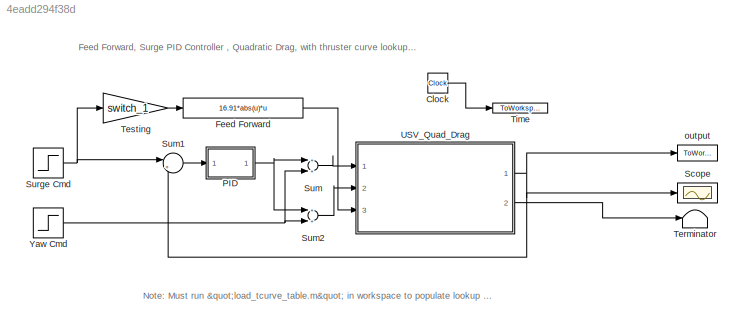
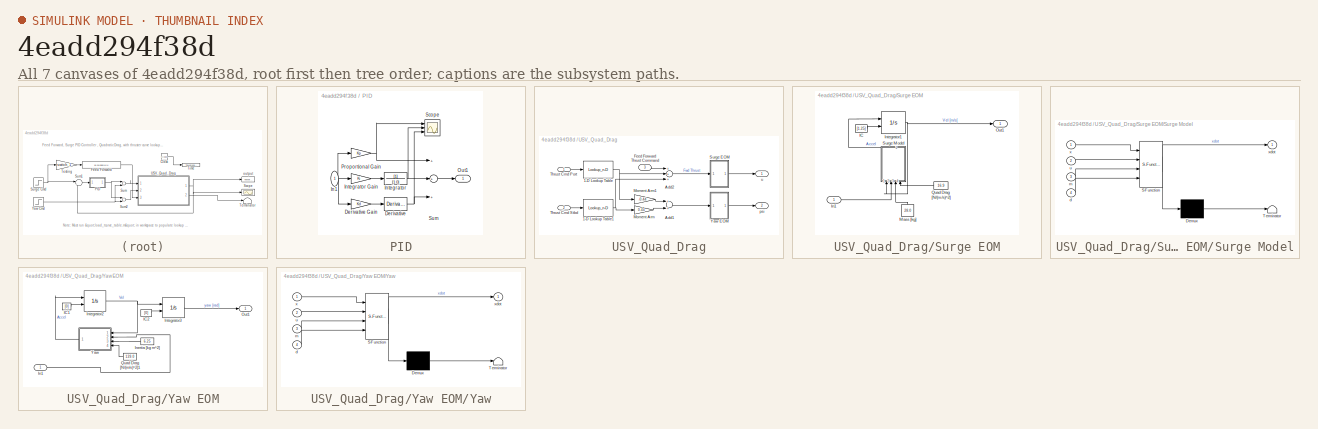
[diagram: thumbnail index - all 7 canvases of the model, root first then tree order]
MODEL slx_4eadd294f38d
KIND model
CONFIG AbsTol = auto
CONFIG FixedStep = auto
CONFIG MaxStep = auto
CONFIG MinStep = auto
CONFIG RelTol = 1e-3
CONFIG SampleTimeConstraint = Unconstrained
CONFIG Solver = VariableStepAuto
CONFIG SolverMode = Auto
CONFIG SolverName = VariableStepAuto
CONFIG StartTime = 0.0
CONFIG StopTime = 45
BLOCK [Clock] Clock
BLOCK [Fcn] Feed Forward
  Expr = 16.91*abs(u)*u
BLOCK [SubSystem] PID
  Ports = [1, 1]
  RequestExecContextInheritance = off
  Variant = off
BLOCK [Derivative] PID/Derivative
  CoefficientInTFapproximation = 0
BLOCK [Gain] PID/Derivative Gain
  Gain = Kd
  OutDataTypeStr = Inherit: Inherit via internal rule
  ParamDataTypeStr = Inherit: Inherit via internal rule
  SaturateOnIntegerOverflow = off
BLOCK [Inport] PID/In1
  IconDisplay = Port number
BLOCK [TransferFcn] PID/Integrator
  Denominator = [1 0]
BLOCK [Gain] PID/Integrator Gain
  Gain = Ki
  OutDataTypeStr = Inherit: Inherit via internal rule
  ParamDataTypeStr = Inherit: Inherit via internal rule
  SaturateOnIntegerOverflow = off
BLOCK [Outport] PID/Out1
  IconDisplay = Port number
BLOCK [Gain] PID/Proportional Gain
  Gain = Kp
  OutDataTypeStr = Inherit: Inherit via internal rule
  ParamDataTypeStr = Inherit: Inherit via internal rule
  SaturateOnIntegerOverflow = off
BLOCK [Scope] PID/Scope
  NumInputPorts = 3
  Ports = [3]
  ScopeSpecificationString = Simulink.scopes.TimeScopeBlockCfg('CurrentConfiguration', extmgr.ConfigurationSet(extmgr.Configuration('Core','General UI',true),extmgr.Configuration('Core','Source UI',true),extmgr.Configuration('Sources','WiredSimulink',true,'DataLoggingVariableName','ScopeData1'),extmgr.Configuration('Visuals','Time Domain',true,'SerializedDisplays',{struct('MinYLimReal','-0.28975','MaxYLimReal','2.25442','YLab...<+1431ch>
BLOCK [Sum] PID/Sum
  InputSameDT = off
  Inputs = +++
  OutDataTypeStr = Inherit: Inherit via internal rule
  Ports = [3, 1]
  SaturateOnIntegerOverflow = off
BLOCK [Scope] Scope
  Ports = [1]
  ScopeSpecificationString = Simulink.scopes.TimeScopeBlockCfg('CurrentConfiguration', extmgr.ConfigurationSet(extmgr.Configuration('Core','General UI',true),extmgr.Configuration('Core','Source UI',true),extmgr.Configuration('Sources','WiredSimulink',true),extmgr.Configuration('Visuals','Time Domain',true,'SerializedDisplays',{struct('MinYLimReal','1.21856','MaxYLimReal','1.53293','YLabelReal','','MinYLimMag','1.21856','MaxYL...<+1371ch>
BLOCK [Sum] Sum
  InputSameDT = off
  OutDataTypeStr = Inherit: Inherit via internal rule
  Ports = [2, 1]
  SaturateOnIntegerOverflow = off
BLOCK [Sum] Sum1
  IconShape = round
  InputSameDT = off
  Inputs = |+-
  OutDataTypeStr = Inherit: Inherit via internal rule
  Ports = [2, 1]
  SaturateOnIntegerOverflow = off
BLOCK [Sum] Sum2
  InputSameDT = off
  OutDataTypeStr = Inherit: Inherit via internal rule
  Ports = [2, 1]
  SaturateOnIntegerOverflow = off
BLOCK [Step] Surge Cmd
  After = 1.5
  Before = 1.25
  SampleTime = 0
  Time = 10
BLOCK [Terminator] Terminator
BLOCK [Gain] Testing
  Gain = switch_1
  OutDataTypeStr = Inherit: Inherit via internal rule
  ParamDataTypeStr = Inherit: Inherit via internal rule
  SaturateOnIntegerOverflow = off
BLOCK [ToWorkspace] Time
  FixptAsFi = on
  MaxDataPoints = inf
  Ports = [1]
  SampleTime = -1
  Save2DSignal = 3-D array (concatenate along third dimension)
  VariableName = time
BLOCK [SubSystem] USV_Quad_Drag
  Ports = [3, 2]
  RequestExecContextInheritance = off
  Variant = off
BLOCK [Lookup_n-D] USV_Quad_Drag/1-D Lookup Table
  BreakpointsForDimension1 = breakpoints1
  ExtrapMethod = Clip
  InternalRulePriority = Speed
  NumberOfTableDimensions = 1
  Ports = [1, 1]
  RndMeth = Simplest
  Table = table_data
  UseLastTableValue = on
BLOCK [Lookup_n-D] USV_Quad_Drag/1-D Lookup Table1
  BreakpointsForDimension1 = breakpoints1
  ExtrapMethod = Clip
  InternalRulePriority = Speed
  NumberOfTableDimensions = 1
  Ports = [1, 1]
  RndMeth = Simplest
  Table = table_data
  UseLastTableValue = on
BLOCK [Sum] USV_Quad_Drag/Add1
  InputSameDT = off
  OutDataTypeStr = Inherit: Inherit via internal rule
  Ports = [2, 1]
  SaturateOnIntegerOverflow = off
BLOCK [Sum] USV_Quad_Drag/Add2
  InputSameDT = off
  Inputs = +++
  OutDataTypeStr = Inherit: Inherit via internal rule
  Ports = [3, 1]
  SaturateOnIntegerOverflow = off
BLOCK [Inport] USV_Quad_Drag/Feed Forward Thrust Command 
  IconDisplay = Port number
  Port = 3
BLOCK [Gain] USV_Quad_Drag/Moment Arm
  Gain = 0.44
  OutDataTypeStr = Inherit: Inherit via internal rule
  ParamDataTypeStr = Inherit: Inherit via internal rule
  SaturateOnIntegerOverflow = off
BLOCK [Gain] USV_Quad_Drag/Moment Arm1
  Gain = -0.44
  OutDataTypeStr = Inherit: Inherit via internal rule
  ParamDataTypeStr = Inherit: Inherit via internal rule
  SaturateOnIntegerOverflow = off
BLOCK [SubSystem] USV_Quad_Drag/Surge EOM
  Ports = [1, 1]
  RequestExecContextInheritance = off
  Variant = off
BLOCK [Constant] USV_Quad_Drag/Surge EOM/IC
  Value = [1.25]
BLOCK [Inport] USV_Quad_Drag/Surge EOM/In1
  IconDisplay = Port number
BLOCK [Integrator] USV_Quad_Drag/Surge EOM/Integrator1
  InitialConditionSource = external
  Ports = [2, 1]
BLOCK [Constant] USV_Quad_Drag/Surge EOM/Mass [kg]
  Value = 28.0
BLOCK [Outport] USV_Quad_Drag/Surge EOM/Out1
  IconDisplay = Port number
BLOCK [Constant] USV_Quad_Drag/Surge EOM/Quad Drag [N//(m//s)^2]
  Value = 16.9
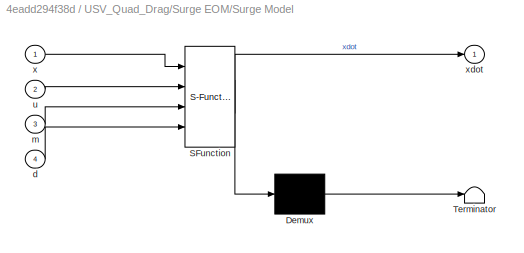
BLOCK [SubSystem] USV_Quad_Drag/Surge EOM/Surge Model
  ErrorFcn = Stateflow.Translate.translate
  PermitHierarchicalResolution = ExplicitOnly
  Ports = [4, 1]
  RequestExecContextInheritance = off
  SFBlockType = MATLAB Function
  TreatAsAtomicUnit = on
  Variant = off
BLOCK [Demux] USV_Quad_Drag/Surge EOM/Surge Model/ Demux 
  Outputs = 1
  Ports = [1, 1]
BLOCK [S-Function] USV_Quad_Drag/Surge EOM/Surge Model/ SFunction 
  EnableBusSupport = on
  FunctionName = sf_sfun
  PortCounts = [4 2]
  Ports = [4, 2]
  SFunctionDeploymentMode = off
  Tag = Stateflow S-Function USV_2DOF_SS_tcurve_SURGE_wPID_FF 2
BLOCK [Terminator] USV_Quad_Drag/Surge EOM/Surge Model/ Terminator 
BLOCK [Inport] USV_Quad_Drag/Surge EOM/Surge Model/d
  IconDisplay = Port number
  Port = 4
BLOCK [Inport] USV_Quad_Drag/Surge EOM/Surge Model/m
  IconDisplay = Port number
  Port = 3
BLOCK [Inport] USV_Quad_Drag/Surge EOM/Surge Model/u
  IconDisplay = Port number
  Port = 2
BLOCK [Inport] USV_Quad_Drag/Surge EOM/Surge Model/x
  IconDisplay = Port number
BLOCK [Outport] USV_Quad_Drag/Surge EOM/Surge Model/xdot
  IconDisplay = Port number
BLOCK [Inport] USV_Quad_Drag/Thrust Cmd Port
  IconDisplay = Port number
BLOCK [Inport] USV_Quad_Drag/Thrust Cmd Stbd
  IconDisplay = Port number
  Port = 2
BLOCK [SubSystem] USV_Quad_Drag/Yaw EOM
  Ports = [1, 1]
  RequestExecContextInheritance = off
  Variant = off
BLOCK [Constant] USV_Quad_Drag/Yaw EOM/IC1
  Value = [0]
BLOCK [Constant] USV_Quad_Drag/Yaw EOM/IC2
  Value = [0]
BLOCK [Inport] USV_Quad_Drag/Yaw EOM/In1
  IconDisplay = Port number
BLOCK [Constant] USV_Quad_Drag/Yaw EOM/Inertia [kg m^2]
  Value = 6.25
BLOCK [Integrator] USV_Quad_Drag/Yaw EOM/Integrator2
  InitialConditionSource = external
  Ports = [2, 1]
BLOCK [Integrator] USV_Quad_Drag/Yaw EOM/Integrator3
  InitialConditionSource = external
  Ports = [2, 1]
BLOCK [Outport] USV_Quad_Drag/Yaw EOM/Out1
  IconDisplay = Port number
BLOCK [Constant] USV_Quad_Drag/Yaw EOM/Quad Drag [N//(m//s)^2]1
  Value = 139.0
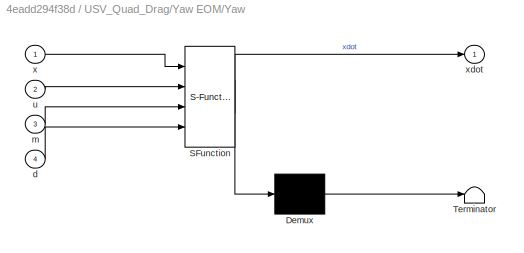
BLOCK [SubSystem] USV_Quad_Drag/Yaw EOM/Yaw
  ErrorFcn = Stateflow.Translate.translate
  PermitHierarchicalResolution = ExplicitOnly
  Ports = [4, 1]
  RequestExecContextInheritance = off
  SFBlockType = MATLAB Function
  TreatAsAtomicUnit = on
  Variant = off
BLOCK [Demux] USV_Quad_Drag/Yaw EOM/Yaw/ Demux 
  Outputs = 1
  Ports = [1, 1]
BLOCK [S-Function] USV_Quad_Drag/Yaw EOM/Yaw/ SFunction 
  EnableBusSupport = on
  FunctionName = sf_sfun
  PortCounts = [4 2]
  Ports = [4, 2]
  SFunctionDeploymentMode = off
  Tag = Stateflow S-Function USV_2DOF_SS_tcurve_SURGE_wPID_FF 1
BLOCK [Terminator] USV_Quad_Drag/Yaw EOM/Yaw/ Terminator 
BLOCK [Inport] USV_Quad_Drag/Yaw EOM/Yaw/d
  IconDisplay = Port number
  Port = 4
BLOCK [Inport] USV_Quad_Drag/Yaw EOM/Yaw/m
  IconDisplay = Port number
  Port = 3
BLOCK [Inport] USV_Quad_Drag/Yaw EOM/Yaw/u
  IconDisplay = Port number
  Port = 2
BLOCK [Inport] USV_Quad_Drag/Yaw EOM/Yaw/x
  IconDisplay = Port number
BLOCK [Outport] USV_Quad_Drag/Yaw EOM/Yaw/xdot
  IconDisplay = Port number
BLOCK [Outport] USV_Quad_Drag/psi
  IconDisplay = Port number
  Port = 2
BLOCK [Outport] USV_Quad_Drag/u
  IconDisplay = Port number
BLOCK [Step] Yaw Cmd
  After = 0
  SampleTime = 0
BLOCK [ToWorkspace] output
  FixptAsFi = on
  MaxDataPoints = inf
  Ports = [1]
  SampleTime = -1
  Save2DSignal = 3-D array (concatenate along third dimension)
  VariableName = surge
ANNOTATION (root): Note: Must run "load_tcurve_table.m" in workspace to populate lookup table!
ANNOTATION (root): Feed Forward, Surge PID Controller , Quadratic Drag, with thruster curve lookup table.
LINE Clock:1 -> Time:1
LINE Feed Forward:1 -> USV_Quad_Drag:3
LINE PID/Derivative Gain:1 -> PID/Derivative:1
NET PID/Derivative:1 -> PID/Scope:3, PID/Sum:3
NET PID/In1:1 -> PID/Derivative Gain:1, PID/Integrator Gain:1, PID/Proportional Gain:1
LINE PID/Integrator Gain:1 -> PID/Integrator:1
NET PID/Integrator:1 -> PID/Scope:2, PID/Sum:2
NET PID/Proportional Gain:1 -> PID/Scope:1, PID/Sum:1
LINE PID/Sum:1 -> PID/Out1:1
NET PID:1 -> Sum2:1, Sum:1
LINE Sum1:1 -> PID:1
LINE Sum2:1 -> USV_Quad_Drag:2
LINE Sum:1 -> USV_Quad_Drag:1
NET Surge Cmd:1 -> Sum1:1, Testing:1
LINE Testing:1 -> Feed Forward:1
NET USV_Quad_Drag/1-D Lookup Table1:1 -> USV_Quad_Drag/Add2:3, USV_Quad_Drag/Moment Arm:1
NET USV_Quad_Drag/1-D Lookup Table:1 -> USV_Quad_Drag/Add2:2, USV_Quad_Drag/Moment Arm1:1
LINE USV_Quad_Drag/Add1:1 -> USV_Quad_Drag/Yaw EOM:1
LINE USV_Quad_Drag/Add2:1 -> USV_Quad_Drag/Surge EOM:1
LINE USV_Quad_Drag/Feed Forward Thrust Command :1 -> USV_Quad_Drag/Add2:1
LINE USV_Quad_Drag/Moment Arm1:1 -> USV_Quad_Drag/Add1:1
LINE USV_Quad_Drag/Moment Arm:1 -> USV_Quad_Drag/Add1:2
LINE USV_Quad_Drag/Surge EOM/IC:1 -> USV_Quad_Drag/Surge EOM/Integrator1:2
LINE USV_Quad_Drag/Surge EOM/In1:1 -> USV_Quad_Drag/Surge EOM/Surge Model:2
NET USV_Quad_Drag/Surge EOM/Integrator1:1 -> USV_Quad_Drag/Surge EOM/Out1:1, USV_Quad_Drag/Surge EOM/Surge Model:1
LINE USV_Quad_Drag/Surge EOM/Mass [kg]:1 -> USV_Quad_Drag/Surge EOM/Surge Model:3
LINE USV_Quad_Drag/Surge EOM/Quad Drag [N//(m//s)^2]:1 -> USV_Quad_Drag/Surge EOM/Surge Model:4
LINE USV_Quad_Drag/Surge EOM/Surge Model:1 -> USV_Quad_Drag/Surge EOM/Integrator1:1
LINE USV_Quad_Drag/Surge EOM:1 -> USV_Quad_Drag/u:1
LINE USV_Quad_Drag/Thrust Cmd Port:1 -> USV_Quad_Drag/1-D Lookup Table:1
LINE USV_Quad_Drag/Thrust Cmd Stbd:1 -> USV_Quad_Drag/1-D Lookup Table1:1
LINE USV_Quad_Drag/Yaw EOM/IC1:1 -> USV_Quad_Drag/Yaw EOM/Integrator2:2
LINE USV_Quad_Drag/Yaw EOM/IC2:1 -> USV_Quad_Drag/Yaw EOM/Integrator3:2
LINE USV_Quad_Drag/Yaw EOM/In1:1 -> USV_Quad_Drag/Yaw EOM/Yaw:2
LINE USV_Quad_Drag/Yaw EOM/Inertia [kg m^2]:1 -> USV_Quad_Drag/Yaw EOM/Yaw:3
NET USV_Quad_Drag/Yaw EOM/Integrator2:1 -> USV_Quad_Drag/Yaw EOM/Integrator3:1, USV_Quad_Drag/Yaw EOM/Yaw:1
LINE USV_Quad_Drag/Yaw EOM/Integrator3:1 -> USV_Quad_Drag/Yaw EOM/Out1:1
LINE USV_Quad_Drag/Yaw EOM/Quad Drag [N//(m//s)^2]1:1 -> USV_Quad_Drag/Yaw EOM/Yaw:4
LINE USV_Quad_Drag/Yaw EOM/Yaw:1 -> USV_Quad_Drag/Yaw EOM/Integrator2:1
LINE USV_Quad_Drag/Yaw EOM:1 -> USV_Quad_Drag/psi:1
NET USV_Quad_Drag:1 -> Scope:1, Sum1:2, output:1
LINE USV_Quad_Drag:2 -> Terminator:1
NET Yaw Cmd:1 -> Sum2:2, Sum:2
note: NET lines group one-source signal fan-out (src -> all destinations, sorted); 1:1 wires keep LINE
CHART USV_Quad_Drag/Yaw EOM/Yaw states=1 transitions=1
  STATE_LABEL 'eML_blk_kernel()'
  STATE_LABEL 'SCRIPT:\nfunction xdot = fcn(x,u,m,d)\n%#codegen\n\n% x - state of the system.  surge velocity.\n% u - input. thrust force\n% Model parameters\nm = m; %28.0;   % Mass [kg]\nd = d; %16.9;  % Quadratic drag coefficient [N/(m/s)^2]\n\nxdot = 1/m*(-d*abs(x)*x+u);\n'
CHART USV_Quad_Drag/Surge EOM/Surge Model states=1 transitions=1
  STATE_LABEL 'eML_blk_kernel()'
  STATE_LABEL 'SCRIPT:\nfunction xdot = fcn(x,u,m,d)\n%#codegen\n\n% x - state of the system.  surge velocity.\n% u - input. thrust force\n% Model parameters\nm = m; %28.0;   % Mass [kg]\nd = d; %16.9;  % Quadratic drag coefficient [N/(m/s)^2]\n\nxdot = 1/m*(-d*abs(x)*x+u);\n'
